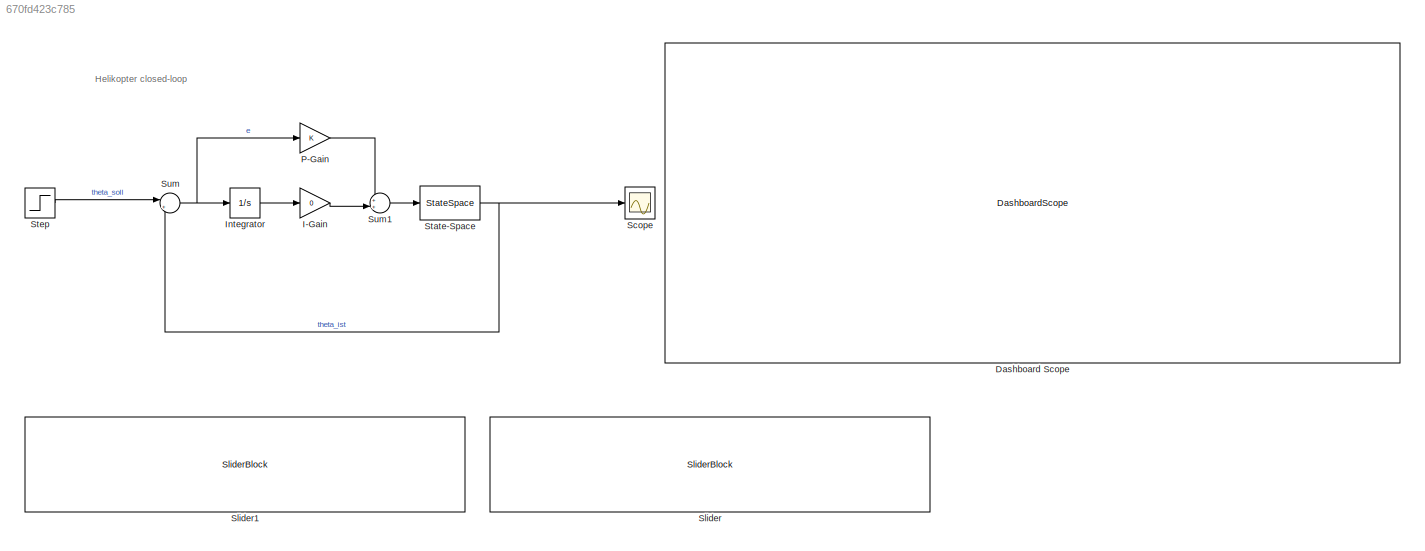
MODEL slx_670fd423c785
KIND model
CONFIG AbsTol = auto
CONFIG EnableMultiTasking = off
CONFIG FixedStep = auto
CONFIG MaxStep = auto
CONFIG MinStep = auto
CONFIG RelTol = 1e-3
CONFIG SampleTimeConstraint = Unconstrained
CONFIG SolverName = VariableStepAuto
CONFIG StartTime = 0.0
CONFIG StopTime = 10.0
BLOCK [DashboardScope] Dashboard Scope
BLOCK [Gain] I-Gain
  Gain = 0
BLOCK [Integrator] Integrator
  Ports = [1, 1]
BLOCK [Gain] P-Gain
BLOCK [Scope] Scope
  Floating = off
  NumInputPorts = 1
  Ports = [1]
  ScopeSpecificationString = Simulink.scopes.TimeScopeBlockCfg('CurrentConfiguration', extmgr.ConfigurationSet(extmgr.Configuration('Core','General UI',true),extmgr.Configuration('Core','Source UI',true),extmgr.Configuration('Sources','WiredSimulink',true),extmgr.Configuration('Visuals','Time Domain',true),extmgr.Configuration('Tools','Plot Navigation',true),extmgr.Configuration('Tools','Measurements',true)),'Version','2022a'...<+1ch>
BLOCK [SliderBlock] Slider
  ScaleMax = 0.5
BLOCK [SliderBlock] Slider1
  ScaleMax = 3
  TickInterval = 0.5
BLOCK [StateSpace] State-Space
  A = [-0.2040 1.392 -9.8019; 0.0073 -0.4875 -0.0313; 0 1 0]
  B = [-2.1242; 8.2631;0]
  C = [0;0;1]'
  D = 0
  InitialCondition = 0
  Ports = [1, 1]
BLOCK [Step] Step
  SampleTime = 0
BLOCK [Sum] Sum
  Inputs = |+-
  Ports = [2, 1]
BLOCK [Sum] Sum1
  Inputs = ++|
  Ports = [2, 1]
ANNOTATION (root): Helikopter closed-loop
LINE I-Gain:1 -> Sum1:2
LINE Integrator:1 -> I-Gain:1
LINE P-Gain:1 -> Sum1:1
NET State-Space:1 -> Scope:1, Sum:2
LINE Step:1 -> Sum:1
LINE Sum1:1 -> State-Space:1
NET Sum:1 -> Integrator:1, P-Gain:1
note: NET lines group one-source signal fan-out (src -> all destinations, sorted); 1:1 wires keep LINE
